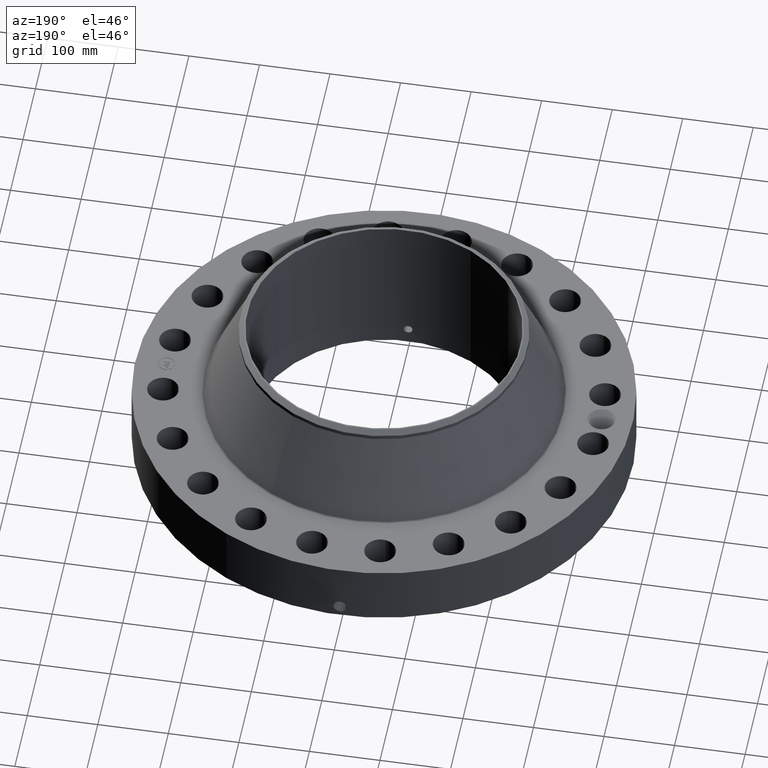
[diagram: clean part render]
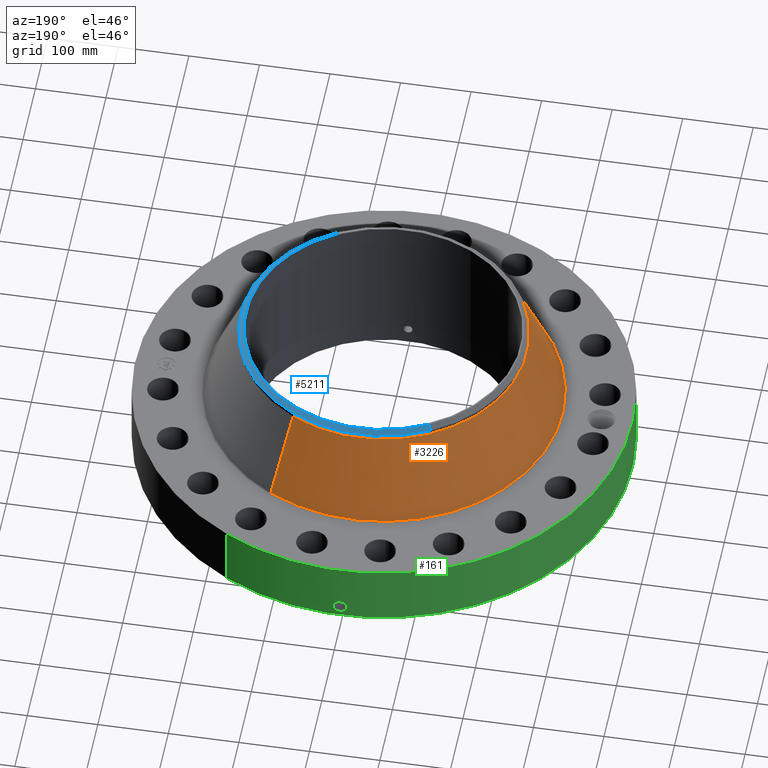
[diagram: same view with three faces highlighted in distinct colors, each labeled with its STEP entity id]
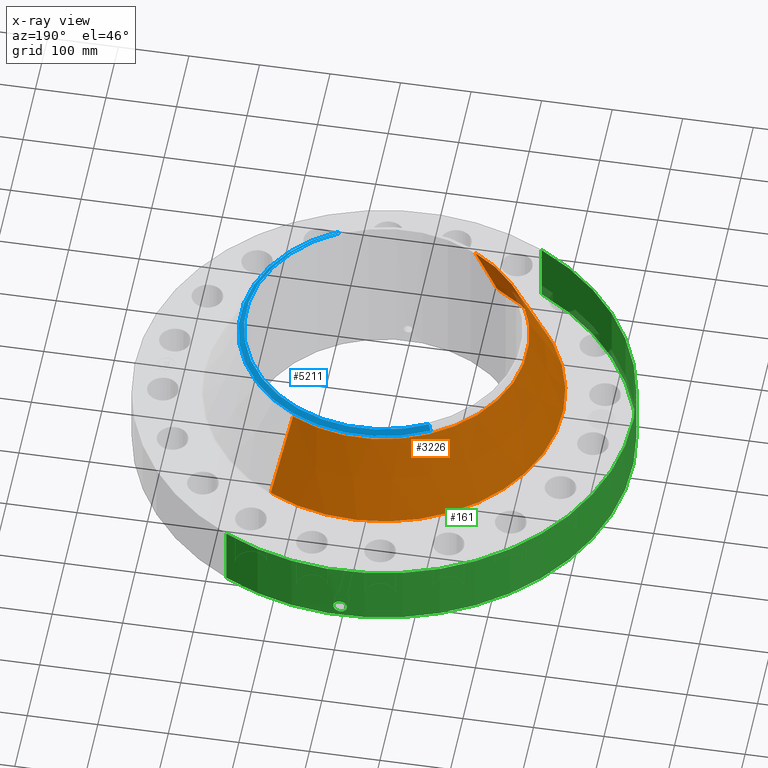
[diagram: x-ray of the same camera — body ghosted, the three highlighted faces saturated]
A machine part, auxiliary view with three faces highlighted in distinct colors.
The next image is the same camera in x-ray (body ghosted, the three faces saturated) — at least one of them is partly hidden behind the body in this view.
Their STEP definitions:

[orange] entity #3226 — the highlighted conical surface has half-angle 23.791 deg.
#2594=AXIS2_PLACEMENT_3D('Circle Axis2P3D',#2592,#2593,$) ;
#3187=AXIS2_PLACEMENT_3D('Cone Axis2P3D',#3184,#3185,#3186) ;
#3217=AXIS2_PLACEMENT_3D('Circle Axis2P3D',#3215,#3216,$) ;
#2570=CARTESIAN_POINT('Vertex',(4.77912348056,8.74812685172,3.82159104771)) ;
#2577=CARTESIAN_POINT('Vertex',(-4.77912348056,-8.74812685172,3.82159104771)) ;
#2592=CARTESIAN_POINT('Axis2P3D Location',(0.,0.,3.82159104771)) ;
#3184=CARTESIAN_POINT('Axis2P3D Location',(0.,0.,8.28645135497)) ;
#3189=CARTESIAN_POINT('Line Origine',(4.30726389471,7.88439367344,6.05402120134)) ;
#3193=CARTESIAN_POINT('Vertex',(3.83540430885,7.02066049515,8.28645135497)) ;
#3200=CARTESIAN_POINT('Vertex',(-3.83540430885,-7.02066049515,8.28645135497)) ;
#3203=CARTESIAN_POINT('Line Origine',(-4.30726389471,-7.88439367344,6.05402120134)) ;
#3215=CARTESIAN_POINT('Axis2P3D Location',(0.,0.,8.28645135497)) ;
#2593=DIRECTION('Axis2P3D Direction',(0.,0.,-0.0393700787402)) ;
#3185=DIRECTION('Axis2P3D Direction',(0.,0.,-0.0393700787402)) ;
#3186=DIRECTION('Axis2P3D XDirection',(-0.0188750212049,-0.0345504945626,0.)) ;
#3190=DIRECTION('Vector Direction',(0.00761433334439,0.0139379436959,-0.0360244188469)) ;
#3204=DIRECTION('Vector Direction',(-0.00761433334439,-0.0139379436959,-0.0360244188469)) ;
#3216=DIRECTION('Axis2P3D Direction',(0.,0.,-0.0393700787402)) ;
#3191=VECTOR('Line Direction',#3190,0.0393700787402) ;
#3205=VECTOR('Line Direction',#3204,0.0393700787402) ;
#3221=ORIENTED_EDGE('',*,*,#2596,.F.) ;
#3222=ORIENTED_EDGE('',*,*,#3207,.T.) ;
#3223=ORIENTED_EDGE('',*,*,#3219,.T.) ;
#3224=ORIENTED_EDGE('',*,*,#3195,.F.) ;
#3226=ADVANCED_FACE('PartBody',(#3225),#3188,.T.) ;
#2595=CIRCLE('generated circle',#2594,9.968437423) ;
#3218=CIRCLE('generated circle',#3217,8.00000000003) ;
#3188=CONICAL_SURFACE('Cone',#3187,8.00000000003,0.415238239617) ;
#2596=EDGE_CURVE('',#2578,#2571,#2595,.T.) ;
#3195=EDGE_CURVE('',#2571,#3194,#3192,.F.) ;
#3207=EDGE_CURVE('',#2578,#3201,#3206,.F.) ;
#3219=EDGE_CURVE('',#3201,#3194,#3218,.T.) ;
#3220=EDGE_LOOP('',(#3221,#3222,#3223,#3224)) ;
#3225=FACE_OUTER_BOUND('',#3220,.T.) ;
#3192=LINE('Line',#3189,#3191) ;
#3206=LINE('Line',#3203,#3205) ;
#2571=VERTEX_POINT('',#2570) ;
#2578=VERTEX_POINT('',#2577) ;
#3194=VERTEX_POINT('',#3193) ;
#3201=VERTEX_POINT('',#3200) ;

[blue] entity #5211 — the highlighted conical surface has half-angle 52.5 deg.
#4014=AXIS2_PLACEMENT_3D('Circle Axis2P3D',#4012,#4013,$) ;
#4041=AXIS2_PLACEMENT_3D('Circle Axis2P3D',#4039,#4040,$) ;
#4827=AXIS2_PLACEMENT_3D('Circle Axis2P3D',#4825,#4826,$) ;
#5192=AXIS2_PLACEMENT_3D('Cone Axis2P3D',#5189,#5190,#5191) ;
#4009=CARTESIAN_POINT('Vertex',(3.83540430885,7.02066049515,8.52267182741)) ;
#4012=CARTESIAN_POINT('Axis2P3D Location',(0.,0.,8.52267182741)) ;
#4016=CARTESIAN_POINT('Vertex',(3.83540430885,-7.02066049515,8.52267182741)) ;
#4036=CARTESIAN_POINT('Vertex',(-3.83540430885,7.02066049515,8.52267182741)) ;
#4039=CARTESIAN_POINT('Axis2P3D Location',(0.,0.,8.52267182741)) ;
#4825=CARTESIAN_POINT('Axis2P3D Location',(0.,0.,8.75000000004)) ;
#4829=CARTESIAN_POINT('Vertex',(3.69336977428,-6.76066802357,8.75000000004)) ;
#4831=CARTESIAN_POINT('Vertex',(-3.69336977428,6.76066802357,8.75000000004)) ;
#5189=CARTESIAN_POINT('Axis2P3D Location',(0.,0.,8.75000000004)) ;
#5194=CARTESIAN_POINT('Line Origine',(-3.76438704157,6.89066425936,8.63633591372)) ;
#5199=CARTESIAN_POINT('Line Origine',(3.76438704157,-6.89066425936,8.63633591372)) ;
#4013=DIRECTION('Axis2P3D Direction',(0.,0.,-0.0393700787402)) ;
#4040=DIRECTION('Axis2P3D Direction',(0.,0.,-0.0393700787402)) ;
#4826=DIRECTION('Axis2P3D Direction',(0.,0.,-0.0393700787402)) ;
#5190=DIRECTION('Axis2P3D Direction',(-0.,-0.,-0.0393700787402)) ;
#5191=DIRECTION('Axis2P3D XDirection',(0.0188750212049,-0.0345504945626,0.)) ;
#5195=DIRECTION('Vector Direction',(-0.014974561121,0.02741075027,-0.023966985394)) ;
#5200=DIRECTION('Vector Direction',(0.014974561121,-0.02741075027,-0.023966985394)) ;
#5196=VECTOR('Line Direction',#5195,0.0393700787402) ;
#5201=VECTOR('Line Direction',#5200,0.0393700787402) ;
#5205=ORIENTED_EDGE('',*,*,#5198,.F.) ;
#5206=ORIENTED_EDGE('',*,*,#4833,.F.) ;
#5207=ORIENTED_EDGE('',*,*,#5203,.T.) ;
#5208=ORIENTED_EDGE('',*,*,#4018,.T.) ;
#5209=ORIENTED_EDGE('',*,*,#4043,.F.) ;
#5211=ADVANCED_FACE('PartBody',(#5210),#5193,.T.) ;
#4015=CIRCLE('generated circle',#4014,8.00000000003) ;
#4042=CIRCLE('generated circle',#4041,8.00000000003) ;
#4828=CIRCLE('generated circle',#4827,7.70374015751) ;
#5193=CONICAL_SURFACE('Cone',#5192,7.70374015751,0.916297857297) ;
#4018=EDGE_CURVE('',#4017,#4010,#4015,.F.) ;
#4043=EDGE_CURVE('',#4037,#4010,#4042,.T.) ;
#4833=EDGE_CURVE('',#4830,#4832,#4828,.F.) ;
#5198=EDGE_CURVE('',#4832,#4037,#5197,.T.) ;
#5203=EDGE_CURVE('',#4830,#4017,#5202,.T.) ;
#5204=EDGE_LOOP('',(#5205,#5206,#5207,#5208,#5209)) ;
#5210=FACE_OUTER_BOUND('',#5204,.T.) ;
#5197=LINE('Line',#5194,#5196) ;
#5202=LINE('Line',#5199,#5201) ;
#4010=VERTEX_POINT('',#4009) ;
#4017=VERTEX_POINT('',#4016) ;
#4037=VERTEX_POINT('',#4036) ;
#4830=VERTEX_POINT('',#4829) ;
#4832=VERTEX_POINT('',#4831) ;

[green] entity #161 — the highlighted cylindrical surface (partial cylindrical patch) has radius 352.425 mm, axis along (0, 0, -1).
#38=AXIS2_PLACEMENT_3D('Cylinder Axis2P3D',#35,#36,#37) ;
#42=AXIS2_PLACEMENT_3D('Circle Axis2P3D',#40,#41,$) ;
#58=AXIS2_PLACEMENT_3D('Circle Axis2P3D',#56,#57,$) ;
#35=CARTESIAN_POINT('Axis2P3D Location',(0.,0.,4.37500000002)) ;
#40=CARTESIAN_POINT('Axis2P3D Location',(0.,0.,0.250000000001)) ;
#44=CARTESIAN_POINT('Vertex',(-6.65202934816,-12.1764580463,0.250000000001)) ;
#46=CARTESIAN_POINT('Vertex',(6.65202934816,12.1764580463,0.250000000001)) ;
#49=CARTESIAN_POINT('Line Origine',(-6.65202934816,-12.1764580463,2.00000000001)) ;
#53=CARTESIAN_POINT('Vertex',(-6.65202934816,-12.1764580463,3.75000000002)) ;
#56=CARTESIAN_POINT('Axis2P3D Location',(0.,0.,3.75000000002)) ;
#60=CARTESIAN_POINT('Vertex',(6.65202934816,12.1764580463,3.75000000002)) ;
#63=CARTESIAN_POINT('Line Origine',(6.65202934816,12.1764580463,2.00000000001)) ;
#75=CARTESIAN_POINT('Control Point',(-0.000716136414945,13.8749999816,1.29411846108)) ;
#76=CARTESIAN_POINT('Control Point',(-0.019086771432,13.8749990334,1.29408135153)) ;
#77=CARTESIAN_POINT('Control Point',(-0.0374541749158,13.8749613092,1.29261060327)) ;
#78=CARTESIAN_POINT('Control Point',(-0.0555963787013,13.8748886138,1.28972418007)) ;
#79=CARTESIAN_POINT('Vertex',(-0.000715749148981,13.8749999816,1.2941185104)) ;
#81=CARTESIAN_POINT('Vertex',(-0.0555897485248,13.8748888271,1.2897252514)) ;
#85=CARTESIAN_POINT('Control Point',(-0.0555896639759,13.8748886407,1.28972469823)) ;
#86=CARTESIAN_POINT('Control Point',(-0.0959156151544,13.874727075,1.28525421976)) ;
#87=CARTESIAN_POINT('Control Point',(-0.135588812381,13.8743855791,1.27344428448)) ;
#88=CARTESIAN_POINT('Control Point',(-0.172117127699,13.8739324164,1.25508904978)) ;
#89=CARTESIAN_POINT('Vertex',(-0.172117127699,13.8739324164,1.25508904978)) ;
#93=CARTESIAN_POINT('Control Point',(-0.0309113459498,13.8749655672,0.531181508471)) ;
#94=CARTESIAN_POINT('Control Point',(-0.100146932317,13.8748113207,0.539949181137)) ;
#95=CARTESIAN_POINT('Control Point',(-0.167049780661,13.8742304151,0.564144002757)) ;
#96=CARTESIAN_POINT('Control Point',(-0.226818522564,13.8732889742,0.602948808117)) ;
#97=CARTESIAN_POINT('Control Point',(-0.299350401892,13.8718336394,0.676994274089)) ;
#98=CARTESIAN_POINT('Control Point',(-0.344181702008,13.8707399935,0.767295529217)) ;
#99=CARTESIAN_POINT('Control Point',(-0.355640415612,13.8704454323,0.798003573091)) ;
#100=CARTESIAN_POINT('Control Point',(-0.374156476895,13.8699580692,0.869284090789)) ;
#101=CARTESIAN_POINT('Control Point',(-0.375828490349,13.8699074727,0.942613094797)) ;
#102=CARTESIAN_POINT('Control Point',(-0.371447237122,13.8700290795,0.983224095555)) ;
#103=CARTESIAN_POINT('Control Point',(-0.348971714154,13.8706363595,1.07570778059)) ;
#104=CARTESIAN_POINT('Control Point',(-0.299516286627,13.8718151558,1.1571014489)) ;
#105=CARTESIAN_POINT('Control Point',(-0.262999798824,13.8726004334,1.19804747322)) ;
#106=CARTESIAN_POINT('Control Point',(-0.219756961489,13.8733414065,1.23115034686)) ;
#107=CARTESIAN_POINT('Control Point',(-0.172117127699,13.8739324164,1.25508904978)) ;
#108=CARTESIAN_POINT('Vertex',(-0.0309113459498,13.8749655672,0.531181508471)) ;
#112=CARTESIAN_POINT('Control Point',(-0.0309113459498,13.8749655672,0.531181508471)) ;
#113=CARTESIAN_POINT('Control Point',(-0.0206025522615,13.8749885336,0.530873446242)) ;
#114=CARTESIAN_POINT('Control Point',(-0.0102865576,13.8750000021,0.530938006513)) ;
#115=CARTESIAN_POINT('Control Point',(2.72878356717E-006,13.8750000001,0.531374667805)) ;
#116=CARTESIAN_POINT('Vertex',(2.72878354226E-006,13.8750000001,0.531374667805)) ;
#120=CARTESIAN_POINT('Control Point',(0.19271222795,13.8736616291,0.587253565879)) ;
#121=CARTESIAN_POINT('Control Point',(0.14903888204,13.8742682741,0.561946407007)) ;
#122=CARTESIAN_POINT('Control Point',(0.101122668302,13.8747512908,0.543747144858)) ;
#123=CARTESIAN_POINT('Control Point',(0.0508080502262,13.8749999901,0.533530764408)) ;
#124=CARTESIAN_POINT('Control Point',(2.72878354252E-006,13.8750000001,0.531374667806)) ;
#125=CARTESIAN_POINT('Vertex',(0.19271222795,13.8736616291,0.587253565879)) ;
#129=CARTESIAN_POINT('Control Point',(0.19271222795,13.8736616291,0.587253565879)) ;
#130=CARTESIAN_POINT('Control Point',(0.24960292279,13.8728713884,0.620219710116)) ;
#131=CARTESIAN_POINT('Control Point',(0.299763985547,13.8718829601,0.664491831177)) ;
#132=CARTESIAN_POINT('Control Point',(0.340056752972,13.8708766722,0.718551206484)) ;
#133=CARTESIAN_POINT('Control Point',(0.384463013966,13.8696833009,0.816671338359)) ;
#134=CARTESIAN_POINT('Control Point',(0.393161865683,13.8694271041,0.921963557678)) ;
#135=CARTESIAN_POINT('Control Point',(0.391087186774,13.8694875387,0.962092298047)) ;
#136=CARTESIAN_POINT('Control Point',(0.37700654022,13.8698906671,1.0369584172)) ;
#137=CARTESIAN_POINT('Control Point',(0.344964138022,13.8707249579,1.10536348334)) ;
#138=CARTESIAN_POINT('Control Point',(0.325926963364,13.8711958058,1.13578353259)) ;
#139=CARTESIAN_POINT('Control Point',(0.264116170682,13.8725941125,1.21241880629)) ;
#140=CARTESIAN_POINT('Control Point',(0.18083700194,13.873986768,1.26553545603)) ;
#141=CARTESIAN_POINT('Control Point',(0.12185830763,13.8746707773,1.28765181016)) ;
#142=CARTESIAN_POINT('Control Point',(0.0604464009986,13.8750001127,1.29711784193)) ;
#143=CARTESIAN_POINT('Control Point',(-2.58579355461E-005,13.875,1.2941529843)) ;
#144=CARTESIAN_POINT('Vertex',(-2.58579355477E-005,13.875,1.2941529843)) ;
#148=CARTESIAN_POINT('Control Point',(-0.000715749139286,13.8749999816,1.29411851038)) ;
#149=CARTESIAN_POINT('Control Point',(-0.00037082802188,13.8749999994,1.29413607098)) ;
#150=CARTESIAN_POINT('Control Point',(-2.58579406869E-005,13.875,1.2941529843)) ;
#36=DIRECTION('Axis2P3D Direction',(0.,0.,-0.0393700787402)) ;
#37=DIRECTION('Axis2P3D XDirection',(0.0188750212049,0.0345504945626,0.)) ;
#41=DIRECTION('Axis2P3D Direction',(0.,0.,-0.0393700787402)) ;
#50=DIRECTION('Vector Direction',(0.,0.,-0.0393700787402)) ;
#57=DIRECTION('Axis2P3D Direction',(0.,0.,-0.0393700787402)) ;
#64=DIRECTION('Vector Direction',(0.,0.,-0.0393700787402)) ;
#51=VECTOR('Line Direction',#50,0.0393700787402) ;
#65=VECTOR('Line Direction',#64,0.0393700787402) ;
#69=ORIENTED_EDGE('',*,*,#48,.F.) ;
#70=ORIENTED_EDGE('',*,*,#55,.T.) ;
#71=ORIENTED_EDGE('',*,*,#62,.T.) ;
#72=ORIENTED_EDGE('',*,*,#67,.F.) ;
#153=ORIENTED_EDGE('',*,*,#83,.T.) ;
#154=ORIENTED_EDGE('',*,*,#91,.T.) ;
#155=ORIENTED_EDGE('',*,*,#110,.F.) ;
#156=ORIENTED_EDGE('',*,*,#118,.T.) ;
#157=ORIENTED_EDGE('',*,*,#127,.F.) ;
#158=ORIENTED_EDGE('',*,*,#146,.T.) ;
#159=ORIENTED_EDGE('',*,*,#151,.F.) ;
#160=FACE_BOUND('',#152,.T.) ;
#161=ADVANCED_FACE('PartBody',(#73,#160),#39,.T.) ;
#74=B_SPLINE_CURVE_WITH_KNOTS('',3,(#75,#76,#77,#78),.UNSPECIFIED.,.F.,.U.,(4,4),(34.6165131323,36.6545610311),.UNSPECIFIED.) ;
#84=B_SPLINE_CURVE_WITH_KNOTS('',3,(#85,#86,#87,#88),.UNSPECIFIED.,.F.,.U.,(4,4),(0.,4.55893355118),.UNSPECIFIED.) ;
#92=B_SPLINE_CURVE_WITH_KNOTS('',5,(#93,#94,#95,#96,#97,#98,#99,#100,#101,#102,#103,#104,#105,#106,#107),.UNSPECIFIED.,.F.,.U.,(6,3,3,3,6),(0.,12.1285001566,17.9846519927,25.3558774576,35.2653975337),.UNSPECIFIED.) ;
#111=B_SPLINE_CURVE_WITH_KNOTS('',3,(#112,#113,#114,#115),.UNSPECIFIED.,.F.,.U.,(4,4),(0.,1.07535076866),.UNSPECIFIED.) ;
#119=B_SPLINE_CURVE_WITH_KNOTS('',4,(#120,#121,#122,#123,#124),.UNSPECIFIED.,.F.,.U.,(5,5),(0.,7.0796670479),.UNSPECIFIED.) ;
#128=B_SPLINE_CURVE_WITH_KNOTS('',5,(#129,#130,#131,#132,#133,#134,#135,#136,#137,#138,#139,#140,#141,#142,#143),.UNSPECIFIED.,.F.,.U.,(6,3,3,3,6),(0.,11.5278314197,18.5928549291,25.0057187687,36.3092389527),.UNSPECIFIED.) ;
#147=B_SPLINE_CURVE_WITH_KNOTS('',2,(#148,#149,#150),.UNSPECIFIED.,.F.,.U.,(3,3),(1.0249481405,1.05074096859),.UNSPECIFIED.) ;
#43=CIRCLE('generated circle',#42,13.8750000001) ;
#59=CIRCLE('generated circle',#58,13.8750000001) ;
#39=CYLINDRICAL_SURFACE('generated cylinder',#38,13.8750000001) ;
#48=EDGE_CURVE('',#45,#47,#43,.T.) ;
#55=EDGE_CURVE('',#45,#54,#52,.F.) ;
#62=EDGE_CURVE('',#54,#61,#59,.T.) ;
#67=EDGE_CURVE('',#47,#61,#66,.F.) ;
#83=EDGE_CURVE('',#80,#82,#74,.T.) ;
#91=EDGE_CURVE('',#82,#90,#84,.T.) ;
#110=EDGE_CURVE('',#109,#90,#92,.T.) ;
#118=EDGE_CURVE('',#109,#117,#111,.T.) ;
#127=EDGE_CURVE('',#126,#117,#119,.T.) ;
#146=EDGE_CURVE('',#126,#145,#128,.T.) ;
#151=EDGE_CURVE('',#80,#145,#147,.T.) ;
#68=EDGE_LOOP('',(#69,#70,#71,#72)) ;
#152=EDGE_LOOP('',(#153,#154,#155,#156,#157,#158,#159)) ;
#73=FACE_OUTER_BOUND('',#68,.T.) ;
#52=LINE('Line',#49,#51) ;
#66=LINE('Line',#63,#65) ;
#45=VERTEX_POINT('',#44) ;
#47=VERTEX_POINT('',#46) ;
#54=VERTEX_POINT('',#53) ;
#61=VERTEX_POINT('',#60) ;
#80=VERTEX_POINT('',#79) ;
#82=VERTEX_POINT('',#81) ;
#90=VERTEX_POINT('',#89) ;
#109=VERTEX_POINT('',#108) ;
#117=VERTEX_POINT('',#116) ;
#126=VERTEX_POINT('',#125) ;
#145=VERTEX_POINT('',#144) ;